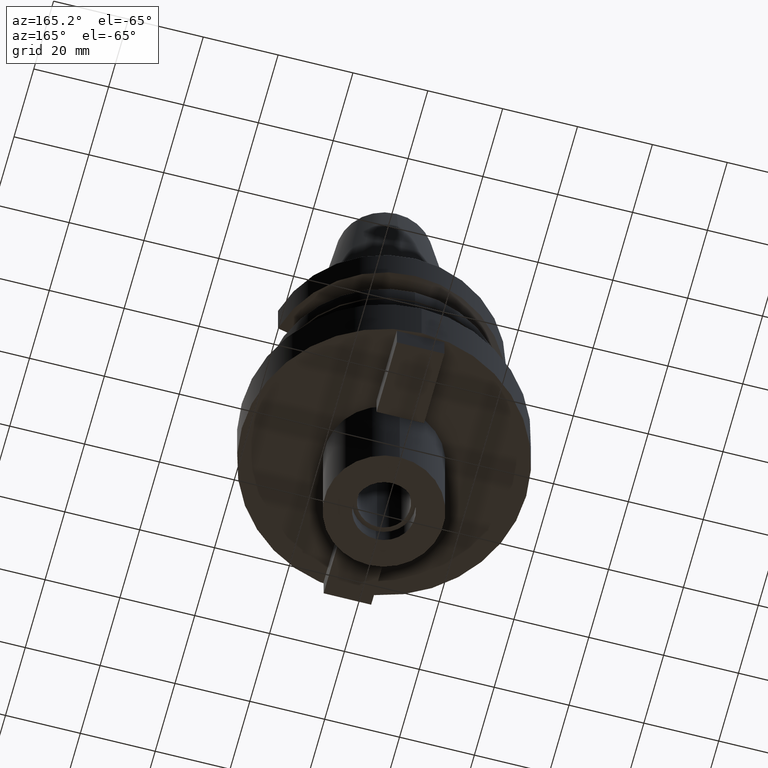
[diagram: clean part render]
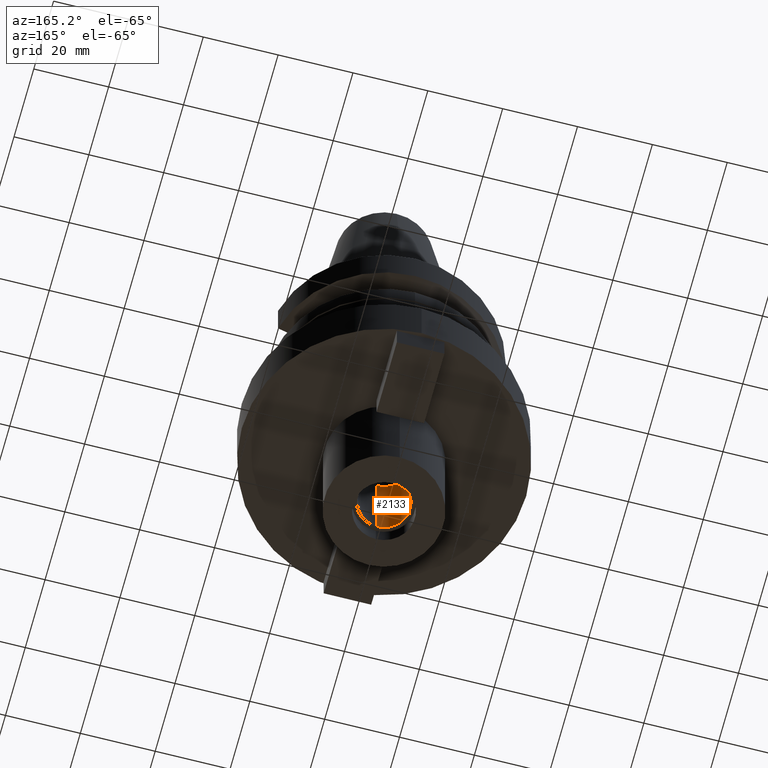
[diagram: same view with one face highlighted and labeled with its STEP entity id]
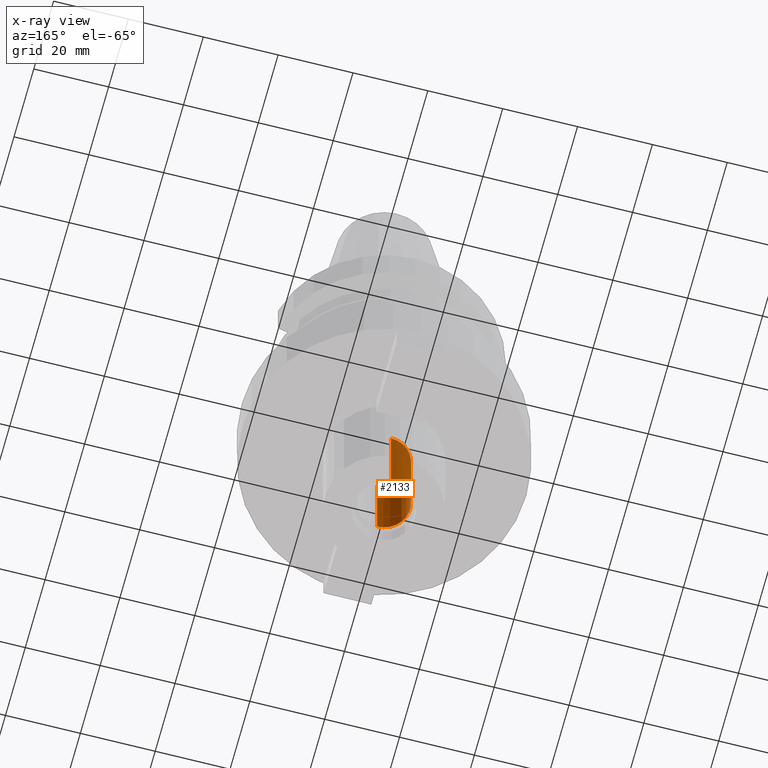
[diagram: x-ray of the same camera — body ghosted, the highlighted face saturated]
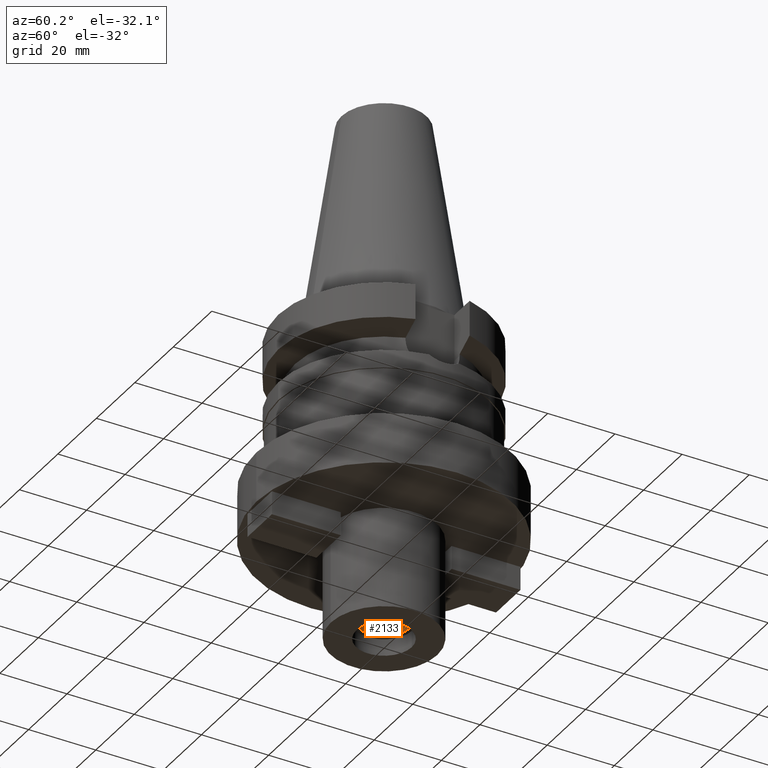
[diagram: same view with one face highlighted and labeled with its STEP entity id]
A machine part, auxiliary view. The second image highlights one B-rep face of the part: STEP entity #2133.
The next image is the same camera in x-ray: the body ghosted, the highlighted face saturated — about 10% of this face is hidden behind the body in this view.
A second angle (auxiliary view) of the same face is appended — the face is thin or edge-on in the first view.
In plain terms, the highlighted cylindrical surface (edge-blend (fillet) strip) has radius 7 mm, axis along (0, 0, -1).
Its self-contained STEP definition (entity closure, byte-faithful):
#887=CARTESIAN_POINT('',(0.E0,2.120720862083E-14,-8.5E1));
#888=DIRECTION('',(0.E0,0.E0,-1.E0));
#889=DIRECTION('',(0.E0,-1.E0,0.E0));
#890=AXIS2_PLACEMENT_3D('',#887,#888,#889);
#903=DIRECTION('',(0.E0,0.E0,1.E0));
#904=VECTOR('',#903,2.5E1);
#905=CARTESIAN_POINT('',(0.E0,-7.E0,-8.5E1));
#906=LINE('',#905,#904);
#910=CARTESIAN_POINT('',(0.E0,2.120720862083E-14,-6.E1));
#911=DIRECTION('',(0.E0,0.E0,-1.E0));
#912=DIRECTION('',(0.E0,-1.E0,0.E0));
#913=AXIS2_PLACEMENT_3D('',#910,#911,#912);
#918=DIRECTION('',(0.E0,0.E0,1.E0));
#919=VECTOR('',#918,2.5E1);
#920=CARTESIAN_POINT('',(0.E0,7.E0,-8.5E1));
#921=LINE('',#920,#919);
#1291=CARTESIAN_POINT('',(0.E0,7.E0,-6.E1));
#1292=VERTEX_POINT('',#1291);
#1293=CARTESIAN_POINT('',(0.E0,-7.E0,-6.E1));
#1294=VERTEX_POINT('',#1293);
#1295=CARTESIAN_POINT('',(0.E0,7.E0,-8.5E1));
#1296=VERTEX_POINT('',#1295);
#1297=CARTESIAN_POINT('',(0.E0,-7.E0,-8.5E1));
#1298=VERTEX_POINT('',#1297);
#2119=CARTESIAN_POINT('',(0.E0,2.120720862083E-14,7.317E1));
#2120=DIRECTION('',(0.E0,0.E0,-1.E0));
#2121=DIRECTION('',(0.E0,-1.E0,0.E0));
#2122=AXIS2_PLACEMENT_3D('',#2119,#2120,#2121);
#2123=CYLINDRICAL_SURFACE('',#2122,7.E0);
#2125=ORIENTED_EDGE('',*,*,#2124,.F.);
#2126=ORIENTED_EDGE('',*,*,#2112,.F.);
#2128=ORIENTED_EDGE('',*,*,#2127,.T.);
#2130=ORIENTED_EDGE('',*,*,#2129,.T.);
#2131=EDGE_LOOP('',(#2125,#2126,#2128,#2130));
#2132=FACE_OUTER_BOUND('',#2131,.F.);
#891=CIRCLE('',#890,7.E0);
#914=CIRCLE('',#913,7.E0);
#2112=EDGE_CURVE('',#1298,#1296,#891,.T.);
#2124=EDGE_CURVE('',#1296,#1292,#921,.T.);
#2127=EDGE_CURVE('',#1298,#1294,#906,.T.);
#2129=EDGE_CURVE('',#1294,#1292,#914,.T.);
#2133=ADVANCED_FACE('',(#2132),#2123,.F.);